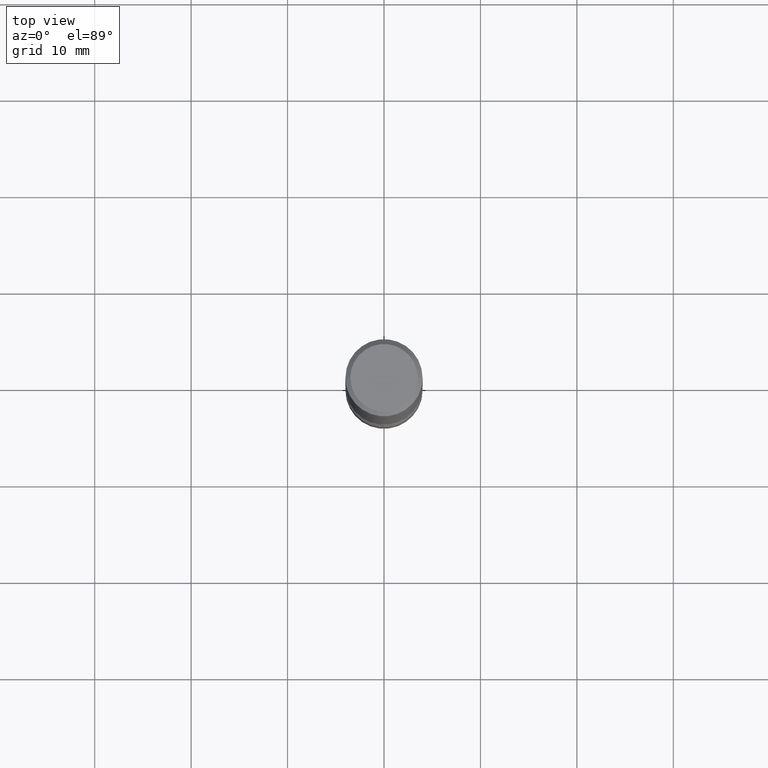
[diagram: clean part render]
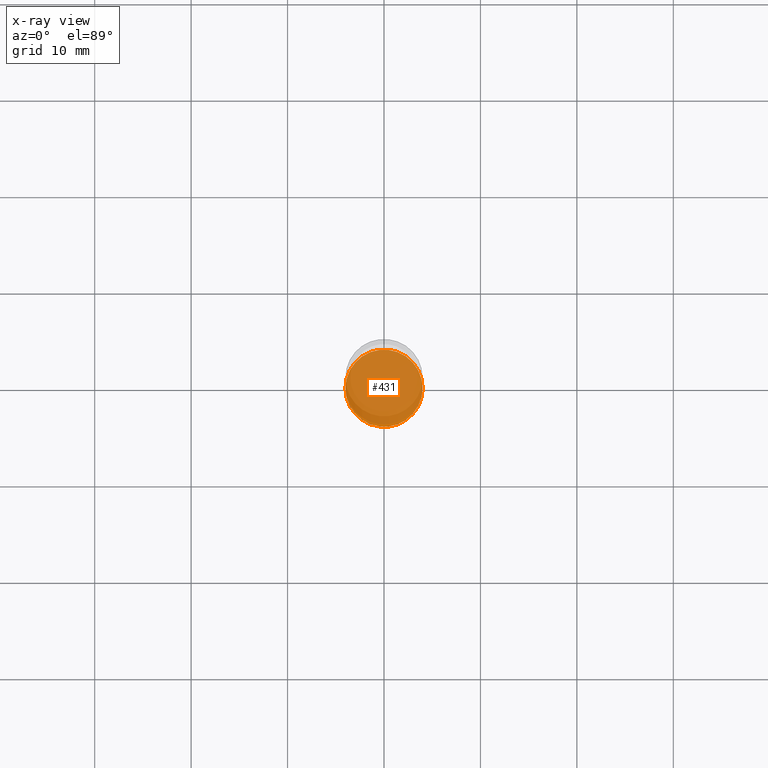
[diagram: x-ray — body ghosted, one internal face saturated and labeled with its STEP entity id]
A machine part, top view, then the same camera in x-ray: the body is ghosted and one INTERNAL B-rep face — a face not visible from any outside direction — is saturated and labeled: STEP entity #431.
In plain terms, the highlighted planar face has unit normal (0, -0, -1).
Its self-contained STEP definition (entity closure, byte-faithful):
#4 = CARTESIAN_POINT ( 'NONE',  ( 6.065740826861612418E-29, -8.660270312866537270E-15, -2.480399999999999494 ) ) ;
#53 = DIRECTION ( 'NONE',  ( -2.445468806185136597E-29, 3.491481338843145583E-15, 1.000000000000000000 ) ) ;
#57 = FACE_OUTER_BOUND ( 'NONE', #243, .T. ) ;
#93 = DIRECTION ( 'NONE',  ( 1.000000000000000000, -6.982962677686268288E-15, 0.000000000000000000 ) ) ;
#97 = DIRECTION ( 'NONE',  ( 2.438088387897960049E-29, -3.491481338843145188E-15, -1.000000000000000000 ) ) ;
#139 = PLANE ( 'NONE',  #560 ) ;
#215 = VERTEX_POINT ( 'NONE', #376 ) ;
#226 = DIRECTION ( 'NONE',  ( 1.000000000000000000, -6.982962677686268288E-15, 0.000000000000000000 ) ) ;
#232 = ORIENTED_EDGE ( 'NONE', *, *, #442, .T. ) ;
#243 = EDGE_LOOP ( 'NONE', ( #284, #232 ) ) ;
#248 = CIRCLE ( 'NONE', #434, 0.1575000000000001399 ) ;
#277 = CARTESIAN_POINT ( 'NONE',  ( 6.065740826861612418E-29, -8.660270312866537270E-15, -2.480399999999999494 ) ) ;
#284 = ORIENTED_EDGE ( 'NONE', *, *, #485, .T. ) ;
#321 = DIRECTION ( 'NONE',  ( -2.445468806185136597E-29, 3.491481338843145583E-15, 1.000000000000000000 ) ) ;
#349 = DIRECTION ( 'NONE',  ( -1.000000000000000000, 6.982962677686265922E-15, -4.876176775795935793E-29 ) ) ;
#376 = CARTESIAN_POINT ( 'NONE',  ( -0.1575000000000001399, -8.331462305091523914E-15, -2.480399999999999494 ) ) ;
#416 = CIRCLE ( 'NONE', #457, 0.1575000000000001399 ) ;
#431 = ADVANCED_FACE ( 'NONE', ( #57 ), #139, .F. ) ;
#434 = AXIS2_PLACEMENT_3D ( 'NONE', #451, #321, #226 ) ;
#442 = EDGE_CURVE ( 'NONE', #215, #514, #248, .T. ) ;
#451 = CARTESIAN_POINT ( 'NONE',  ( 6.065740826861612418E-29, -8.660270312866537270E-15, -2.480399999999999494 ) ) ;
#457 = AXIS2_PLACEMENT_3D ( 'NONE', #277, #53, #93 ) ;
#485 = EDGE_CURVE ( 'NONE', #514, #215, #416, .T. ) ;
#501 = CARTESIAN_POINT ( 'NONE',  ( 0.1575000000000001399, -9.760086934602125539E-15, -2.480399999999999494 ) ) ;
#514 = VERTEX_POINT ( 'NONE', #501 ) ;
#560 = AXIS2_PLACEMENT_3D ( 'NONE', #4, #97, #349 ) ;